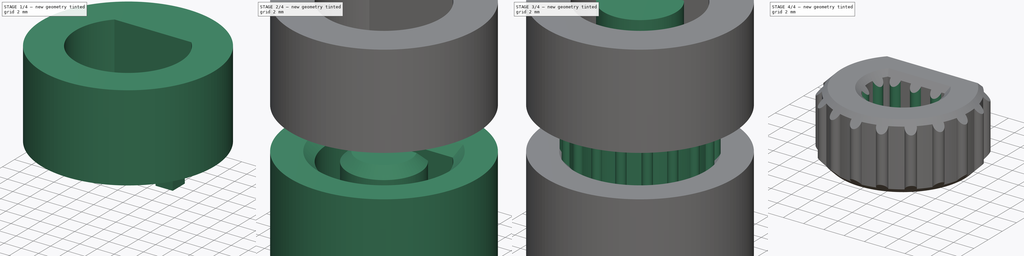
[diagram: build sequence overview — one tinted view per stage of 4, left to right]
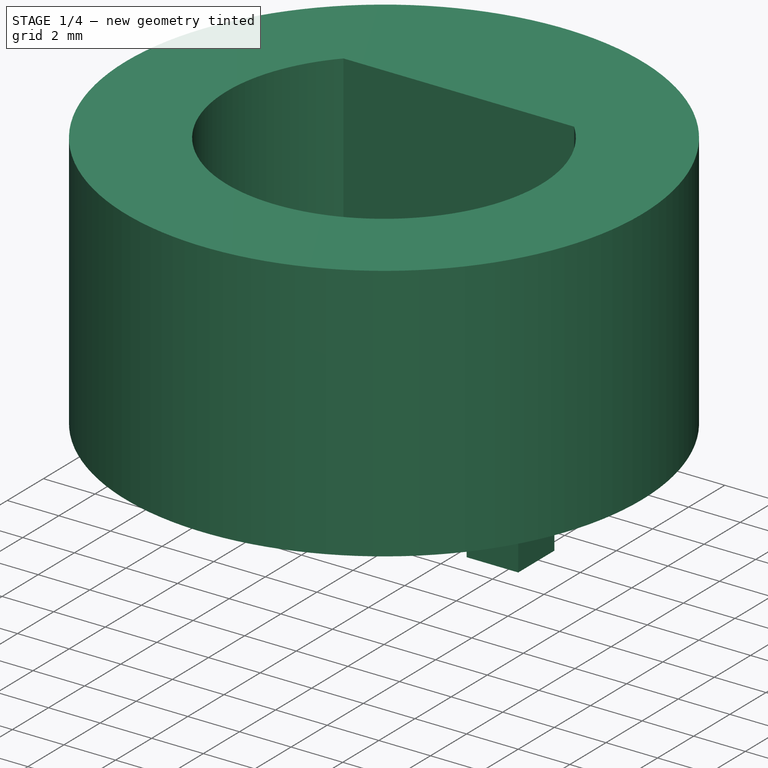
[diagram: stage 1 of 4 — iso view after this stage's code; geometry added in this stage tinted green]
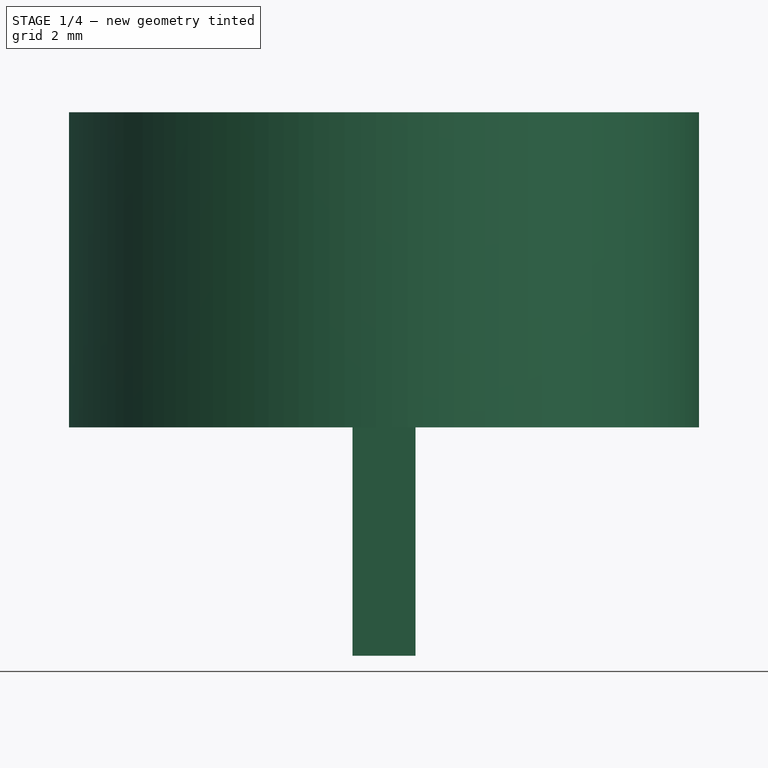
[diagram: stage 1 of 4 — front view after this stage's code; geometry added in this stage tinted green]
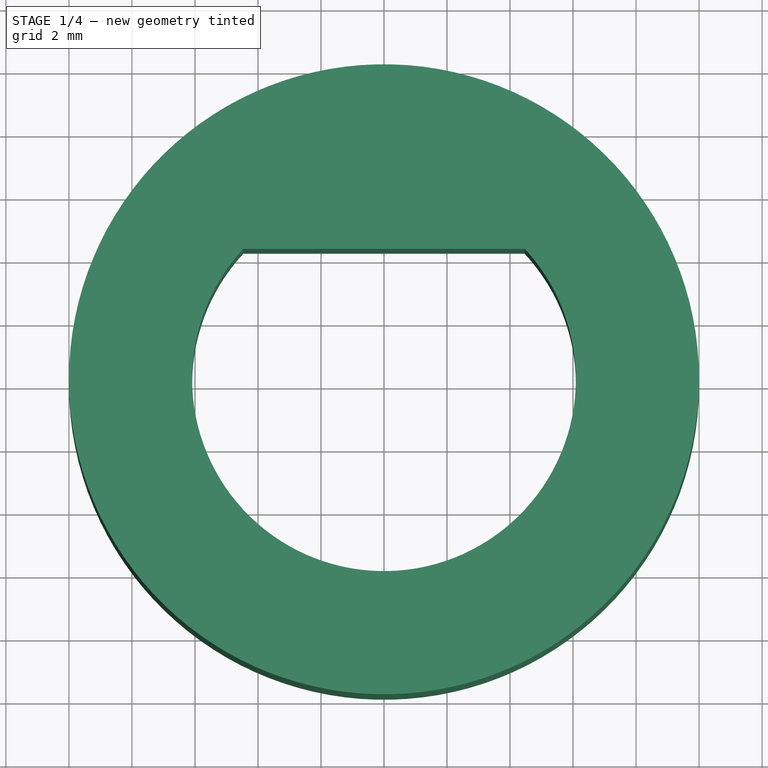
[diagram: stage 1 of 4 — top view after this stage's code; geometry added in this stage tinted green]
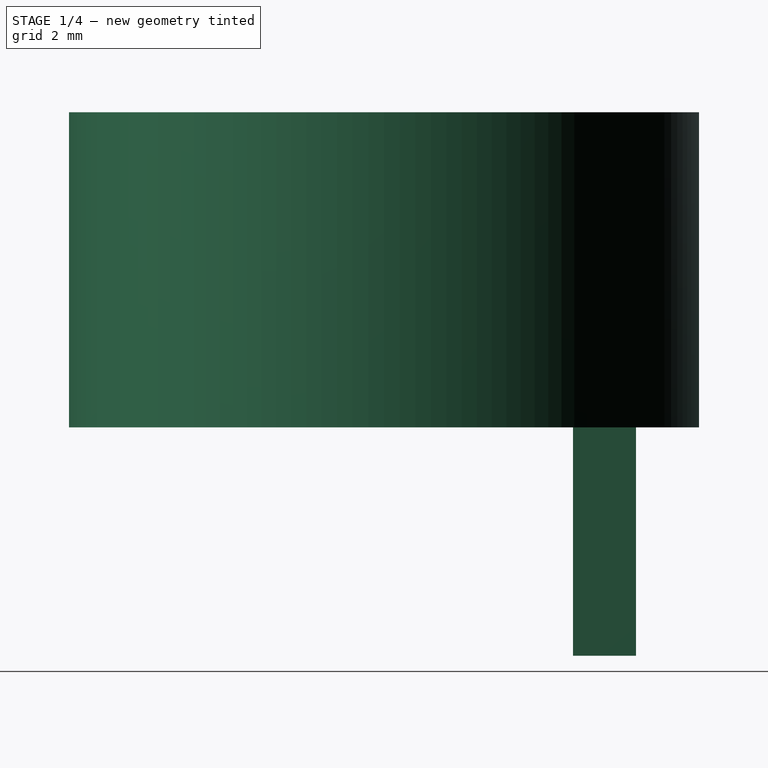
[diagram: stage 1 of 4 — right view after this stage's code; geometry added in this stage tinted green]
FCSTD DOCUMENT  (FreeCAD 0.21R33668 +26 (Git))
Label: PLASTIC-TEK2-KNOB-INTERFACE
License: All rights reserved
LicenseURL: https://en.wikipedia.org/wiki/All_rights_reserved
objects: Sketcher::SketchObject×7, PartDesign::Pad×7, PartDesign::Plane×3, PartDesign::Body×3, PartDesign::Chamfer×2, PartDesign::Mirrored×2, PartDesign::Boolean×2
note: 35 computed .brp shape members not serialized (recipe doc carries the construction recipe); baked Part::Feature solids carry a one-line shape summary decoded from their .brp

FEATURE [PartDesign::Plane] DatumPlane002
  AttachmentOffset = pos=(0,0,2.25) rot=(0,0,1;0rad)
  Length = 60
  MapMode = 5
  Placement = pos=(0,0,2.25) rot=(0,0,1;0rad)
  ResizeMode = 0
  Support = -> [XY_Plane002]
  Width = 60
FEATURE [Sketcher::SketchObject] Sketch008
  FullyConstrained = true
  MapMode = 5
  Placement = pos=(0,0,2.25) rot=(0,0,1;0rad)
  Support = -> [DatumPlane002]
  sketch-geometry (3):
    g0: ArcOfCircle CenterX=0 CenterY=0 CenterZ=0 NormalX=0 NormalY=0 NormalZ=1 AngleXU=0 Radius=6.09 StartAngle=2.3941 EndAngle=7.03068
    g1: LineSegment StartX=-4.46637 StartY=4.14 StartZ=0 EndX=4.46637 EndY=4.14 EndZ=0
    g2: Circle CenterX=0 CenterY=0 CenterZ=0 NormalX=0 NormalY=0 NormalZ=1 AngleXU=0 Radius=10
  constraints (8):
    c: Coincident(g0,g-1)
    c: Horizontal(g1)
    c: Diameter(g0) = 12.18
    c: DistanceY(g-1,g1) = 4.14
    c: Coincident(g0,g1)
    c: Coincident(g0,g1)
    c: Coincident(g0,g2)
    c: Diameter(g2) = 20
FEATURE [PartDesign::Pad] Pad006
  Direction = (0,0,1)
  Length = 10
  Length2 = 10
  Placement = pos=(0,0,2.25) rot=(0,0,1;0rad)
  Profile = -> Sketch008
  ReferenceAxis = -> Sketch008 [N_Axis]
  Type = 0
FEATURE [PartDesign::Chamfer] Chamfer001
  Angle = 45
  Base = -> Pad006 [Edge6,Edge8]
  BaseFeature = -> Pad006
  ChamferType = 0
  FlipDirection = false
  Placement = pos=(0,0,2.25) rot=(0,0,1;0rad)
  Size = 1
  Size2 = 1
  SupportTransform = false
  UseAllEdges = false
FEATURE [Sketcher::SketchObject] Sketch009
  FullyConstrained = true
  MapMode = 5
  Placement = pos=(0,0,0) rot=(0.57735,0.57735,0.57735;2.0944rad)
  Support = -> [YZ_Plane002]
  sketch-geometry (5):
    g0: LineSegment StartX=6 StartY=-5 StartZ=0 EndX=6 EndY=5 EndZ=0
    g1: LineSegment StartX=6 StartY=5 StartZ=0 EndX=8 EndY=5 EndZ=0
    g2: LineSegment StartX=8 StartY=5 StartZ=0 EndX=8 EndY=-5 EndZ=0
    g3: LineSegment StartX=8 StartY=-5 StartZ=0 EndX=6 EndY=-5 EndZ=0
    g4: GeomPoint X=7 Y=0 Z=0
  constraints (13):
    c: Coincident(g0,g1)
    c: Coincident(g1,g2)
    c: Coincident(g2,g3)
    c: Coincident(g3,g0)
    c: Horizontal(g1)
    c: Horizontal(g3)
    c: Vertical(g0)
    c: Vertical(g2)
    c: Symmetric(g1,g0,g4)
    c: PointOnObject(g4,g-1)
    c: DistanceY(g2,g2) = 10
    c: DistanceX(g1,g1) = 2
    c: DistanceX(g-1,g0) = 6
FEATURE [PartDesign::Pad] Pad007
  BaseFeature = -> Chamfer001
  Direction = (1,-2e-16,3e-16)
  Length = 2
  Length2 = 10
  Midplane = true
  Placement = pos=(0,0,2.25) rot=(0,0,1;0rad)
  Profile = -> Sketch009
  ReferenceAxis = -> Sketch009 [N_Axis]
  Type = 0
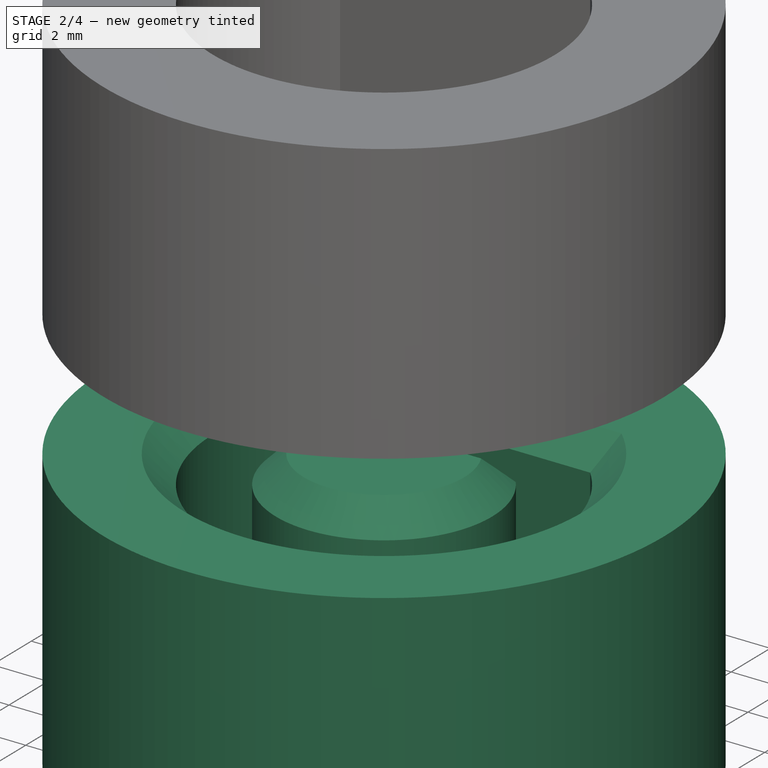
[diagram: stage 2 of 4 — iso view after this stage's code; geometry added in this stage tinted green]
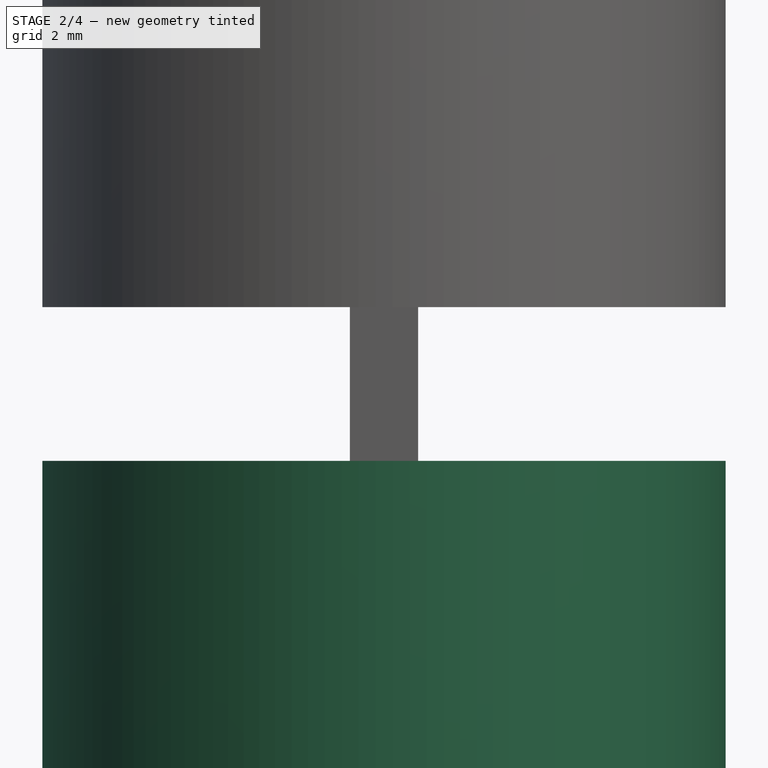
[diagram: stage 2 of 4 — front view after this stage's code; geometry added in this stage tinted green]
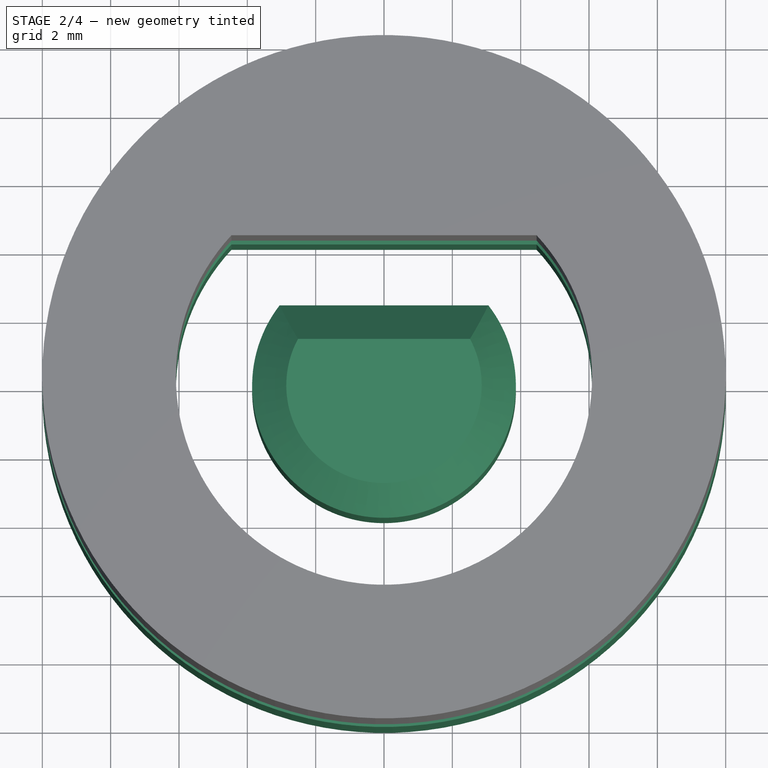
[diagram: stage 2 of 4 — top view after this stage's code; geometry added in this stage tinted green]
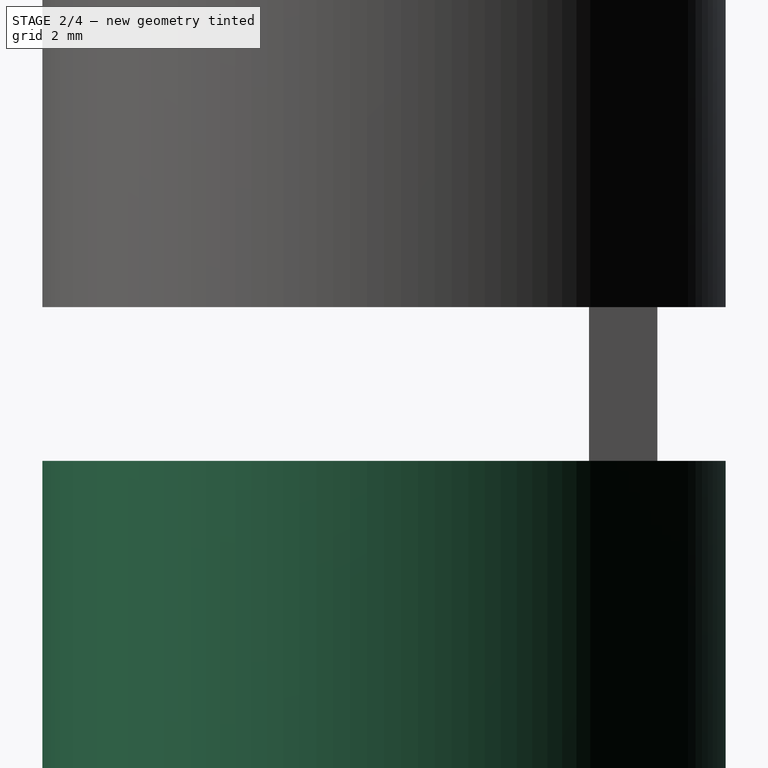
[diagram: stage 2 of 4 — right view after this stage's code; geometry added in this stage tinted green]
FEATURE [PartDesign::Plane] DatumPlane001
  AttachmentOffset = pos=(0,0,-4) rot=(0,0,1;0rad)
  Length = 60
  MapMode = 5
  Placement = pos=(0,0,-4) rot=(0,0,1;0rad)
  ResizeMode = 0
  Support = -> [XY_Plane]
  Width = 60
FEATURE [PartDesign::Plane] DatumPlane
  AttachmentOffset = pos=(0,0,-2.25) rot=(0,0,1;0rad)
  Length = 60
  MapMode = 5
  Placement = pos=(0,0,-2.25) rot=(0,0,1;0rad)
  ResizeMode = 0
  Support = -> [XY_Plane001]
  Width = 60
FEATURE [Sketcher::SketchObject] Sketch006
  FullyConstrained = true
  MapMode = 5
  Placement = pos=(0,0,-2.25) rot=(0,0,1;0rad)
  Support = -> [DatumPlane]
  sketch-geometry (2):
    g0: ArcOfCircle CenterX=0 CenterY=0 CenterZ=0 NormalX=0 NormalY=0 NormalZ=1 AngleXU=0 Radius=3.86 StartAngle=2.48377 EndAngle=6.94101
    g1: LineSegment StartX=-3.0545 StartY=2.36 StartZ=0 EndX=3.0545 EndY=2.36 EndZ=0
  constraints (6):
    c: Coincident(g0,g-1)
    c: Horizontal(g1)
    c: Diameter(g0) = 7.72
    c: DistanceY(g-1,g1) = 2.36
    c: Coincident(g0,g1)
    c: Coincident(g0,g1)
FEATURE [PartDesign::Pad] Pad004
  Direction = (0,0,1)
  Length = 10
  Length2 = 10
  Placement = pos=(0,0,-2.25) rot=(0,0,1;0rad)
  Profile = -> Sketch006
  ReferenceAxis = -> Sketch006 [N_Axis]
  Reversed = true
  Type = 0
FEATURE [PartDesign::Chamfer] Chamfer
  Angle = 45
  Base = -> Pad004 [Edge3,Edge5]
  BaseFeature = -> Pad004
  ChamferType = 0
  FlipDirection = false
  Placement = pos=(0,0,-2.25) rot=(0,0,1;0rad)
  Size = 1
  Size2 = 1
  SupportTransform = false
  UseAllEdges = false
FEATURE [PartDesign::Mirrored] Mirrored001
  BaseFeature = -> Pad007
  MirrorPlane = -> XY_Plane002
  Originals = -> [Pad006,Chamfer001]
  Placement = pos=(0,0,2.25) rot=(0,0,1;0rad)
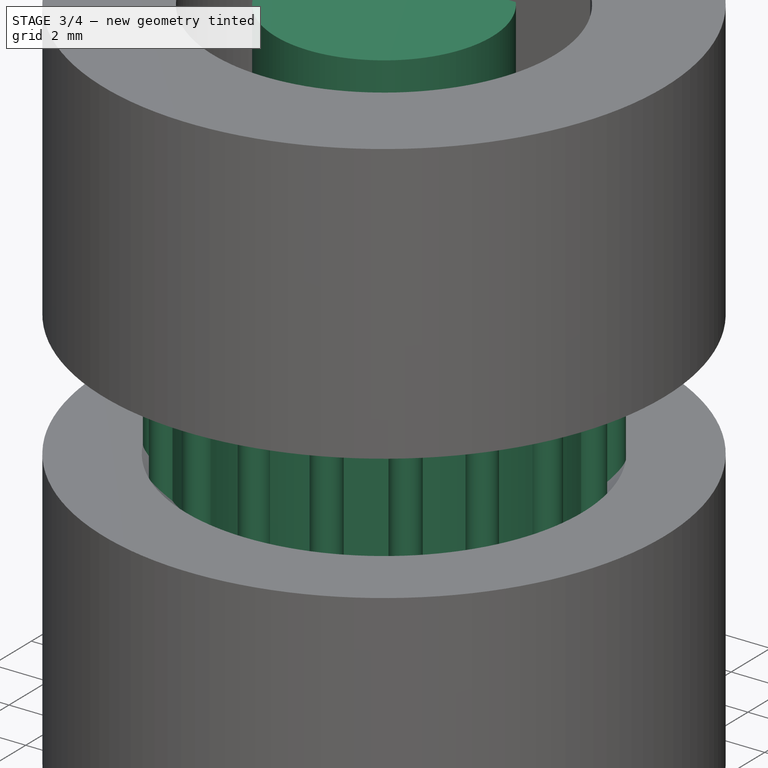
[diagram: stage 3 of 4 — iso view after this stage's code; geometry added in this stage tinted green]
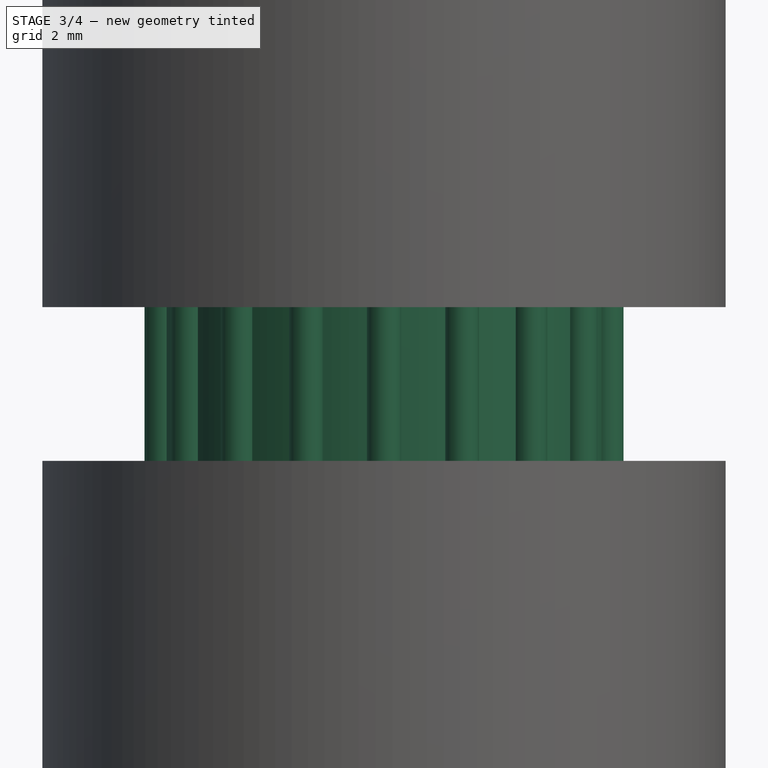
[diagram: stage 3 of 4 — front view after this stage's code; geometry added in this stage tinted green]
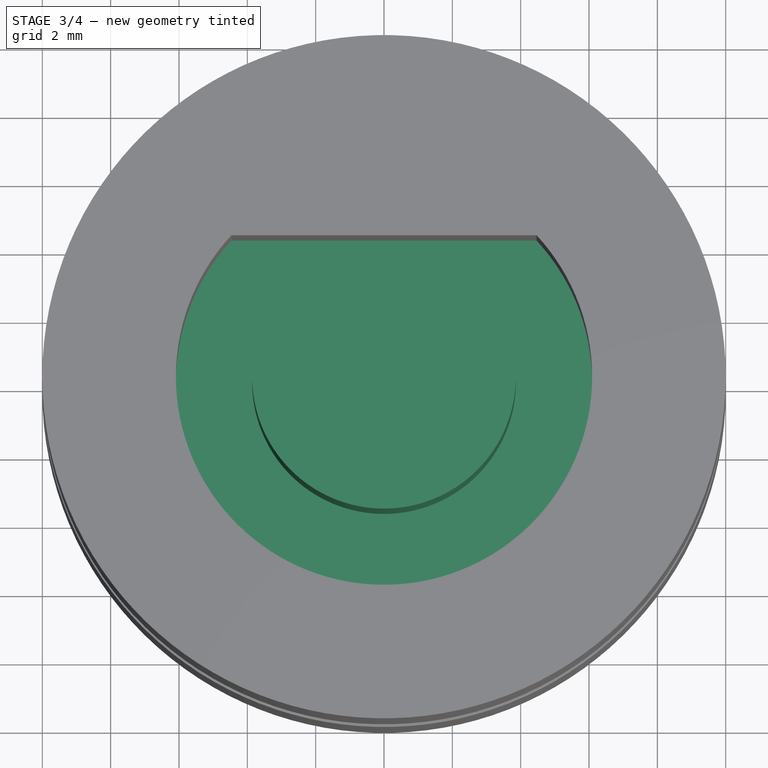
[diagram: stage 3 of 4 — top view after this stage's code; geometry added in this stage tinted green]
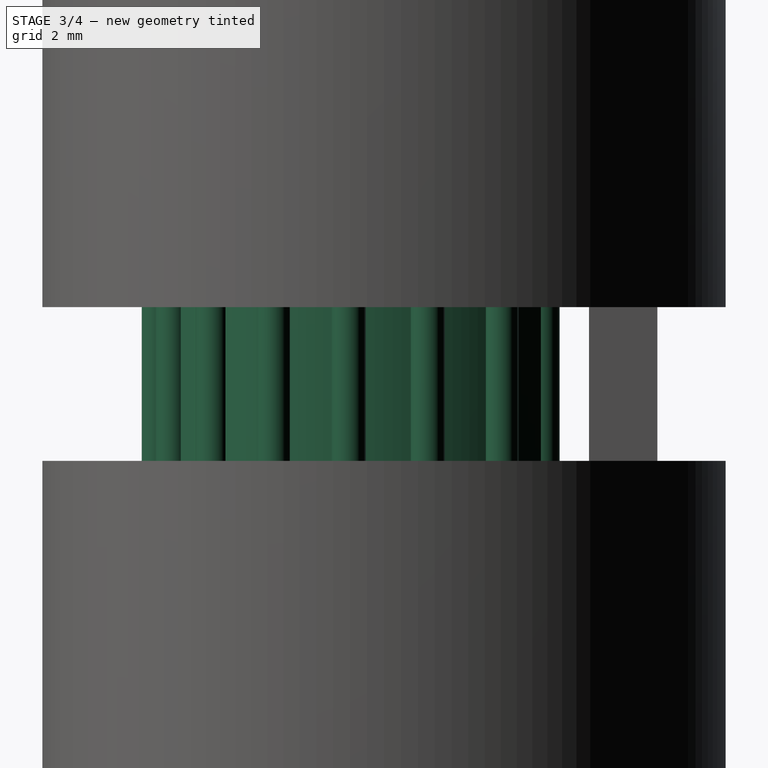
[diagram: stage 3 of 4 — right view after this stage's code; geometry added in this stage tinted green]
FEATURE [Sketcher::SketchObject] Sketch
  FullyConstrained = true
  MapMode = 5
  Support = -> [XY_Plane]
  sketch-geometry (5):
    g0: LineSegment StartX=-2.79821 StartY=1.86 StartZ=0 EndX=2.79821 EndY=1.86 EndZ=0
    g1: ArcOfCircle CenterX=0 CenterY=0 CenterZ=0 NormalX=0 NormalY=0 NormalZ=1 AngleXU=0 Radius=3.36 StartAngle=2.55495 EndAngle=6.86983
    g2: LineSegment StartX=-4.6587 StartY=4.59 StartZ=0 EndX=4.6587 EndY=4.59 EndZ=0
    g3: GeomPoint X=-1e-16 Y=4.59 Z=0
    g4: ArcOfCircle CenterX=0 CenterY=0 CenterZ=0 NormalX=0 NormalY=0 NormalZ=1 AngleXU=0 Radius=6.54 StartAngle=2.36362 EndAngle=7.06116
  constraints (13):
    c: Diameter(g1) = 6.72
    c: Coincident(g0,g1)
    c: Coincident(g0,g1)
    c: Horizontal(g0)
    c: Horizontal(g2)
    c: Symmetric(g2,g2,g3)
    c: Diameter(g4) = 13.08
    c: Coincident(g4,g2)
    c: Coincident(g4,g2)
    c: Coincident(g4,g1)
    c: DistanceY(g1,g2) = 4.59
    c: Coincident(g1,g-1)
    c: DistanceY(g1,g0) = 1.86
FEATURE [PartDesign::Pad] Pad
  Direction = (0,0,1)
  Length = 6.5
  Length2 = 10
  Midplane = true
  Profile = -> Sketch
  ReferenceAxis = -> Sketch [N_Axis]
  Type = 0
FEATURE [Sketcher::SketchObject] Sketch002
  FullyConstrained = true
  MapMode = 5
  Support = -> [XY_Plane]
  sketch-geometry (38):
    g0: ArcOfCircle CenterX=0 CenterY=0 CenterZ=0 NormalX=0 NormalY=0 NormalZ=1 AngleXU=0 Radius=6.59 StartAngle=2.36044 EndAngle=7.06434
    g1: Circle CenterX=-5.6209 CenterY=3.44 CenterZ=0 NormalX=0 NormalY=0 NormalZ=1 AngleXU=0 Radius=0.5
    g2: LineSegment StartX=-4.67958 StartY=4.64 StartZ=0 EndX=4.67958 EndY=4.64 EndZ=0
    g3: Circle CenterX=-6.464 CenterY=1.28252 CenterZ=0 NormalX=0 NormalY=0 NormalZ=1 AngleXU=0 Radius=0.5
    g4: Circle CenterX=-6.50847 CenterY=-1.03342 CenterZ=0 NormalX=0 NormalY=0 NormalZ=1 AngleXU=0 Radius=0.5
    g5: Circle CenterX=-4.27889 CenterY=-5.0119 CenterZ=0 NormalX=0 NormalY=0 NormalZ=1 AngleXU=0 Radius=0.5
    g6: Circle CenterX=-2.28031 CenterY=-6.1829 CenterZ=0 NormalX=0 NormalY=0 NormalZ=1 AngleXU=0 Radius=0.5
    g7: Circle CenterX=4e-16 CenterY=-6.59 CenterZ=0 NormalX=0 NormalY=0 NormalZ=1 AngleXU=0 Radius=0.5
    g8: Circle CenterX=5.6209 CenterY=3.44 CenterZ=0 NormalX=0 NormalY=0 NormalZ=1 AngleXU=0 Radius=0.5
    g9: Circle CenterX=-5.74881 CenterY=-3.22168 CenterZ=0 NormalX=0 NormalY=0 NormalZ=1 AngleXU=0 Radius=0.5
    g10: Circle CenterX=6.464 CenterY=1.28252 CenterZ=0 NormalX=0 NormalY=0 NormalZ=1 AngleXU=0 Radius=0.5
    g11: Circle CenterX=4.27889 CenterY=-5.0119 CenterZ=0 NormalX=0 NormalY=0 NormalZ=1 AngleXU=0 Radius=0.5
    g12: Circle CenterX=5.74881 CenterY=-3.22168 CenterZ=0 NormalX=0 NormalY=0 NormalZ=1 AngleXU=0 Radius=0.5
    g13: Circle CenterX=2.28031 CenterY=-6.1829 CenterZ=0 NormalX=0 NormalY=0 NormalZ=1 AngleXU=0 Radius=0.5
    g14: Circle CenterX=6.50847 CenterY=-1.03342 CenterZ=0 NormalX=0 NormalY=0 NormalZ=1 AngleXU=0 Radius=0.5
    g15: LineSegment StartX=-5.6209 StartY=3.44 StartZ=0 EndX=-6.464 EndY=1.28252 EndZ=0
    g16: LineSegment StartX=-6.464 StartY=1.28252 StartZ=0 EndX=-6.50847 EndY=-1.03342 EndZ=0
    g17: LineSegment StartX=-6.50847 StartY=-1.03342 StartZ=0 EndX=-5.74881 EndY=-3.22168 EndZ=0
    g18: LineSegment StartX=-5.74881 StartY=-3.22168 StartZ=0 EndX=-4.27889 EndY=-5.0119 EndZ=0
    g19: LineSegment StartX=-4.27889 StartY=-5.0119 StartZ=0 EndX=-2.28031 EndY=-6.1829 EndZ=0
    g20: LineSegment StartX=-2.28031 StartY=-6.1829 StartZ=0 EndX=4e-16 EndY=-6.59 EndZ=0
    g21: LineSegment StartX=4e-16 StartY=-6.59 StartZ=0 EndX=2.28031 EndY=-6.1829 EndZ=0
    g22: LineSegment StartX=2.28031 StartY=-6.1829 StartZ=0 EndX=4.27889 EndY=-5.0119 EndZ=0
    g23: LineSegment StartX=4.27889 StartY=-5.0119 StartZ=0 EndX=5.74881 EndY=-3.22168 EndZ=0
    g24: LineSegment StartX=5.74881 StartY=-3.22168 StartZ=0 EndX=6.50847 EndY=-1.03342 EndZ=0
    g25: LineSegment StartX=6.50847 StartY=-1.03342 StartZ=0 EndX=6.464 EndY=1.28252 EndZ=0
    g26: LineSegment StartX=6.464 StartY=1.28252 StartZ=0 EndX=5.6209 EndY=3.44 EndZ=0
    g27: Circle CenterX=-3.45 CenterY=4.64 CenterZ=0 NormalX=0 NormalY=0 NormalZ=1 AngleXU=0 Radius=0.5
    g28: Circle CenterX=-1.15 CenterY=4.64 CenterZ=0 NormalX=0 NormalY=0 NormalZ=1 AngleXU=0 Radius=0.5
    g29: LineSegment StartX=-3.45 StartY=4.64 StartZ=0 EndX=-1.15 EndY=4.64 EndZ=0
    g30: Circle CenterX=1.15 CenterY=4.64 CenterZ=0 NormalX=0 NormalY=0 NormalZ=1 AngleXU=0 Radius=0.5
    g31: LineSegment StartX=-1.15 StartY=4.64 StartZ=0 EndX=1.15 EndY=4.64 EndZ=0
    g32: Circle CenterX=3.45 CenterY=4.64 CenterZ=0 NormalX=0 NormalY=0 NormalZ=1 AngleXU=0 Radius=0.5
    g33: LineSegment StartX=1.15 StartY=4.64 StartZ=0 EndX=3.45 EndY=4.64 EndZ=0
    g34: GeomPoint X=0 Y=4.64 Z=0
    g35: LineSegment StartX=-4.88349 StartY=5.14 StartZ=0 EndX=4.88349 EndY=5.14 EndZ=0
    g36: ArcOfCircle CenterX=0 CenterY=0 CenterZ=0 NormalX=0 NormalY=0 NormalZ=1 AngleXU=0 Radius=7.09 StartAngle=2.33061 EndAngle=7.09417
    g37: GeomPoint X=0 Y=-7.09 Z=0
  constraints (99):
    c: Coincident(g0,g-1)
    c: Diameter(g0) = 13.18
    c: PointOnObject(g1,g0)
    c: Diameter(g1) = 1
    c: Horizontal(g2)
    c: DistanceY(g0,g2) = 4.64
    c: Coincident(g0,g2)
    c: Coincident(g0,g2)
    c: DistanceY(g1,g0) = 1.2
    c: PointOnObject(g4,g0)
    c: PointOnObject(g5,g0)
    c: PointOnObject(g6,g0)
    c: PointOnObject(g7,g0)
    c: PointOnObject(g3,g0)
    c: PointOnObject(g9,g0)
    c: Equal(g1,g3)
    c: Equal(g3,g4)
    c: Equal(g4,g9)
    c: Equal(g9,g5)
    c: Equal(g5,g6)
    c: Equal(g6,g7)
    c: Equal(g7,g11)
    c: Equal(g11,g12)
    c: Equal(g12,g13)
    c: Equal(g13,g10)
    c: Equal(g10,g8)
    c: PointOnObject(g11,g0)
    c: PointOnObject(g12,g0)
    c: PointOnObject(g13,g0)
    c: PointOnObject(g14,g0)
    c: Coincident(g15,g1)
    c: Coincident(g16,g15)
    c: Coincident(g16,g4)
    c: Coincident(g17,g16)
    c: Coincident(g18,g17)
    c: Coincident(g18,g5)
    c: Coincident(g19,g18)
    c: Coincident(g20,g19)
    c: Coincident(g20,g7)
    c: Coincident(g21,g20)
    c: Coincident(g22,g21)
    c: Coincident(g22,g11)
    c: Coincident(g23,g22)
    c: Coincident(g24,g23)
    c: Coincident(g24,g14)
    c: Coincident(g25,g24)
    c: Coincident(g25,g10)
    c: Coincident(g26,g25)
    c: Coincident(g26,g8)
    c: Coincident(g15,g3)
    c: Coincident(g17,g9)
    c: Coincident(g19,g6)
    c: Coincident(g21,g13)
    c: Coincident(g23,g12)
    c: PointOnObject(g25,g0)
    c: PointOnObject(g26,g0)
    c: Equal(g15,g16)
    c: Equal(g16,g17)
    c: Equal(g17,g18)
    c: Equal(g18,g19)
    c: Equal(g19,g20)
    c: Equal(g20,g21)
    c: Equal(g21,g22)
    c: Equal(g22,g23)
    c: Equal(g23,g24)
    c: Equal(g24,g25)
    c: Equal(g25,g26)
    c: Horizontal(g8,g1)
    c: Equal(g14,g1)
    c: PointOnObject(g27,g2)
    c: Equal(g27,g1)
    c: Coincident(g27,g29)
    c: Coincident(g28,g29)
    c: Distance(g29) = 2.3
    c: Coincident(g28,g31)
    c: Coincident(g30,g31)
    c: Equal(g29,g31)
    c: Parallel(g31,g29)
    c: Coincident(g30,g33)
    c: Coincident(g32,g33)
    c: Equal(g29,g33)
    c: Parallel(g33,g29)
    c: PointOnObject(g34,g-2)
    c: Symmetric(g28,g30,g34)
    c: Equal(g27,g28)
    c: Equal(g28,g30)
    c: Equal(g30,g32)
    c: Horizontal(g33)
    c: Horizontal(g35)
    c: Coincident(g36,g0)
    c: Tangent(g36,g7)
    c: Coincident(g35,g36)
    c: Coincident(g35,g36)
    c: Tangent(g35,g30)
    c: DistanceY(g0,g35) = 5.14
    c: Diameter(g36) = 14.18
    c: PointOnObject(g37,g36)
    c: PointOnObject(g37,g-2)
    c: DistanceY(g37,g35) = 12.23
FEATURE [PartDesign::Pad] Pad002
  BaseFeature = -> Pad
  Direction = (0,0,1)
  Length = 6.5
  Length2 = 10
  Midplane = true
  Profile = -> Sketch002
  ReferenceAxis = -> Sketch002 [N_Axis]
  Refine = true
  Type = 0
FEATURE [Sketcher::SketchObject] Sketch007
  FullyConstrained = true
  MapMode = 5
  Placement = pos=(0,0,0) rot=(0.57735,0.57735,0.57735;2.0944rad)
  Support = -> [YZ_Plane001]
  sketch-geometry (5):
    g0: LineSegment StartX=-1 StartY=-5 StartZ=0 EndX=-1 EndY=5 EndZ=0
    g1: LineSegment StartX=-1 StartY=5 StartZ=0 EndX=1 EndY=5 EndZ=0
    g2: LineSegment StartX=1 StartY=5 StartZ=0 EndX=1 EndY=-5 EndZ=0
    g3: LineSegment StartX=1 StartY=-5 StartZ=0 EndX=-1 EndY=-5 EndZ=0
    g4: GeomPoint X=0 Y=0 Z=0
  constraints (12):
    c: Coincident(g0,g1)
    c: Coincident(g1,g2)
    c: Coincident(g2,g3)
    c: Coincident(g3,g0)
    c: Horizontal(g1)
    c: Horizontal(g3)
    c: Vertical(g0)
    c: Vertical(g2)
    c: Symmetric(g1,g0,g4)
    c: Coincident(g4,g-1)
    c: DistanceY(g2,g2) = 10
    c: DistanceX(g1,g1) = 2
FEATURE [PartDesign::Pad] Pad005
  BaseFeature = -> Chamfer
  Direction = (1,-2e-16,3e-16)
  Length = 2
  Length2 = 10
  Midplane = true
  Placement = pos=(0,0,-2.25) rot=(0,0,1;0rad)
  Profile = -> Sketch007
  ReferenceAxis = -> Sketch007 [N_Axis]
  Type = 0
FEATURE [PartDesign::Mirrored] Mirrored
  BaseFeature = -> Pad005
  MirrorPlane = -> XY_Plane001
  Originals = -> [Pad004,Chamfer]
  Placement = pos=(0,0,-2.25) rot=(0,0,1;0rad)
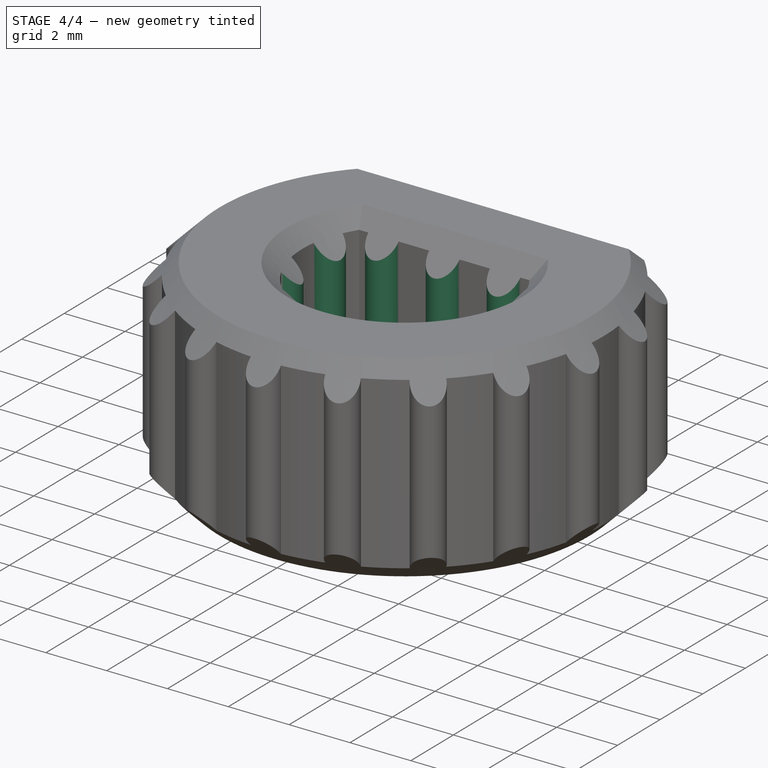
[diagram: stage 4 of 4 — iso view after this stage's code; geometry added in this stage tinted green]
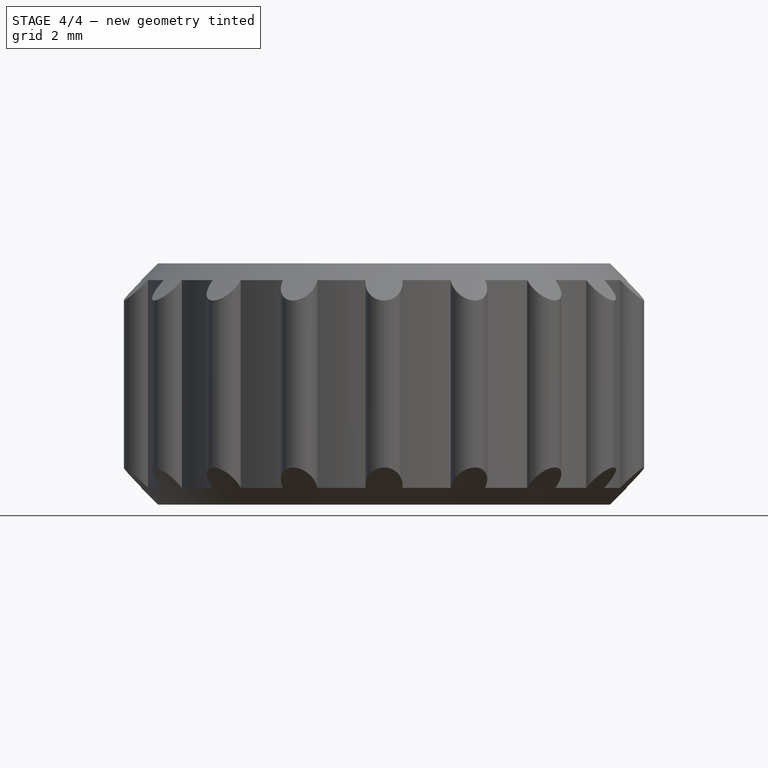
[diagram: stage 4 of 4 — front view after this stage's code; geometry added in this stage tinted green]
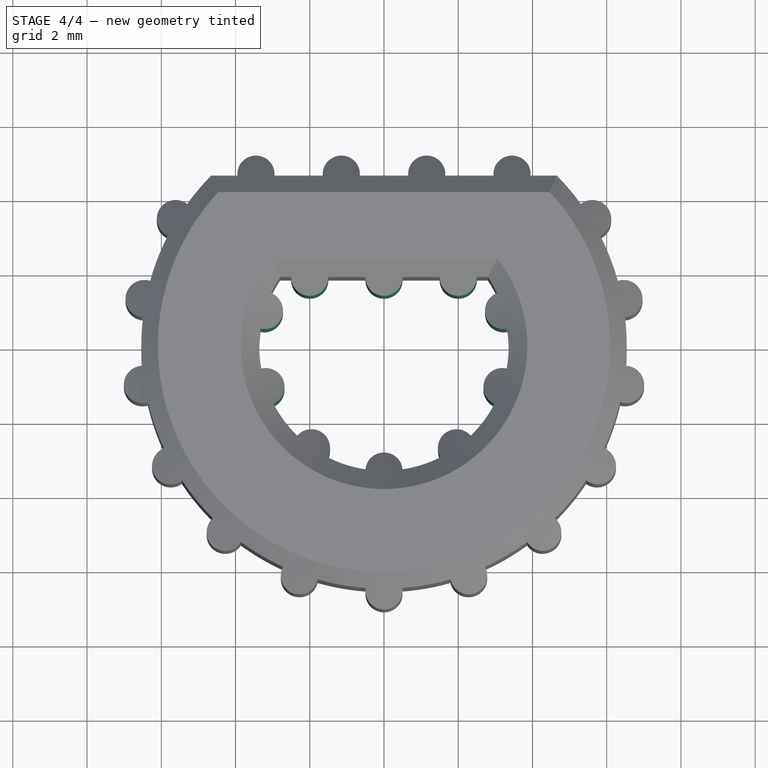
[diagram: stage 4 of 4 — top view after this stage's code; geometry added in this stage tinted green]
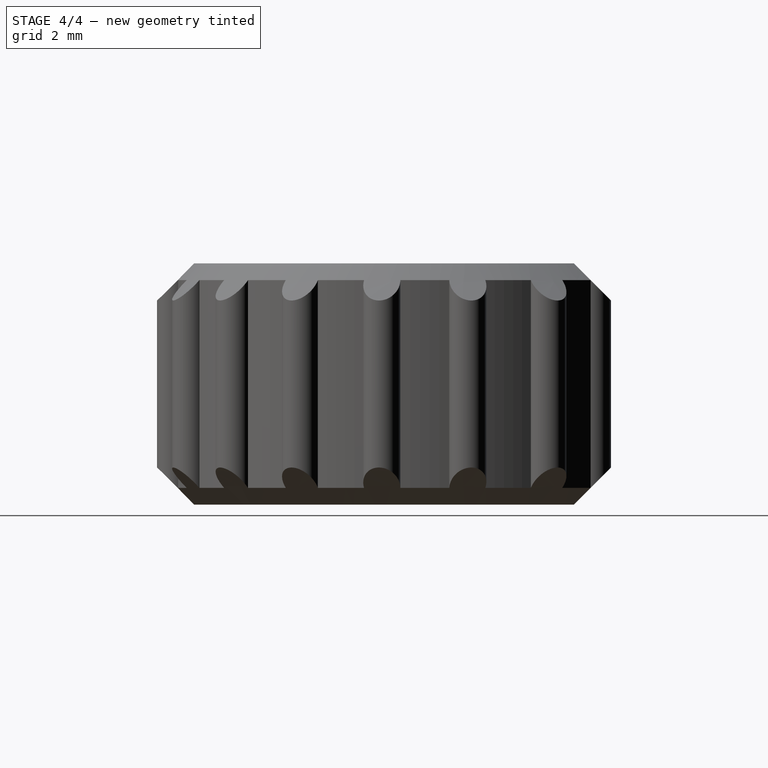
[diagram: stage 4 of 4 — right view after this stage's code; geometry added in this stage tinted green]
FEATURE [Sketcher::SketchObject] Sketch003
  FullyConstrained = true
  MapMode = 5
  Support = -> [XY_Plane]
  sketch-geometry (22):
    g0: ArcOfCircle CenterX=0 CenterY=0 CenterZ=0 NormalX=0 NormalY=0 NormalZ=1 AngleXU=0 Radius=3.36 StartAngle=2.55495 EndAngle=6.86983
    g1: LineSegment StartX=-2.79821 StartY=1.86 StartZ=0 EndX=2.79821 EndY=1.86 EndZ=0
    g2: Circle CenterX=-2 CenterY=1.86 CenterZ=0 NormalX=0 NormalY=0 NormalZ=1 AngleXU=0 Radius=0.5
    g3: Circle CenterX=0 CenterY=1.86 CenterZ=0 NormalX=0 NormalY=0 NormalZ=1 AngleXU=0 Radius=0.5
    g4: LineSegment StartX=-2 StartY=1.86 StartZ=0 EndX=0 EndY=1.86 EndZ=0
    g5: Circle CenterX=2 CenterY=1.86 CenterZ=0 NormalX=0 NormalY=0 NormalZ=1 AngleXU=0 Radius=0.5
    g6: LineSegment StartX=0 StartY=1.86 StartZ=0 EndX=2 EndY=1.86 EndZ=0
    g7: Circle CenterX=-3.21994 CenterY=0.96 CenterZ=0 NormalX=0 NormalY=0 NormalZ=1 AngleXU=0 Radius=0.5
    g8: Circle CenterX=-3.17823 CenterY=-1.09015 CenterZ=0 NormalX=0 NormalY=0 NormalZ=1 AngleXU=0 Radius=0.5
    g9: Circle CenterX=-1.95278 CenterY=-2.73427 CenterZ=0 NormalX=0 NormalY=0 NormalZ=1 AngleXU=0 Radius=0.5
    g10: Circle CenterX=-2e-16 CenterY=-3.36 CenterZ=0 NormalX=0 NormalY=0 NormalZ=1 AngleXU=0 Radius=0.5
    g11: Circle CenterX=1.95278 CenterY=-2.73427 CenterZ=0 NormalX=0 NormalY=0 NormalZ=1 AngleXU=0 Radius=0.5
    g12: Circle CenterX=3.17823 CenterY=-1.09015 CenterZ=0 NormalX=0 NormalY=0 NormalZ=1 AngleXU=0 Radius=0.5
    g13: Circle CenterX=3.21994 CenterY=0.96 CenterZ=0 NormalX=0 NormalY=0 NormalZ=1 AngleXU=0 Radius=0.5
    g14: LineSegment StartX=-3.21994 StartY=0.96 StartZ=0 EndX=-3.17823 EndY=-1.09015 EndZ=0
    g15: LineSegment StartX=-3.17823 StartY=-1.09015 StartZ=0 EndX=-1.95278 EndY=-2.73427 EndZ=0
    g16: LineSegment StartX=-1.95278 StartY=-2.73427 StartZ=0 EndX=-2e-16 EndY=-3.36 EndZ=0
    g17: LineSegment StartX=-2e-16 StartY=-3.36 StartZ=0 EndX=1.95278 EndY=-2.73427 EndZ=0
    g18: LineSegment StartX=1.95278 StartY=-2.73427 StartZ=0 EndX=3.17823 EndY=-1.09015 EndZ=0
    g19: LineSegment StartX=3.17823 StartY=-1.09015 StartZ=0 EndX=3.21994 EndY=0.96 EndZ=0
    g20: LineSegment StartX=-2.51595 StartY=1.36 StartZ=0 EndX=2.51595 EndY=1.36 EndZ=0
    g21: ArcOfCircle CenterX=0 CenterY=0 CenterZ=0 NormalX=0 NormalY=0 NormalZ=1 AngleXU=0 Radius=2.86 StartAngle=2.64603 EndAngle=6.77875
  constraints (60):
    c: Coincident(g0,g-1)
    c: Diameter(g0) = 6.72
    c: Horizontal(g1)
    c: DistanceY(g0,g1) = 1.86
    c: Coincident(g0,g1)
    c: Coincident(g0,g1)
    c: PointOnObject(g2,g1)
    c: Diameter(g2) = 1
    c: Equal(g2,g3) = 1
    c: Coincident(g2,g4)
    c: Coincident(g3,g4)
    c: Distance(g4) = 2
    c: Angle(g4) = 0
    c: Equal(g2,g5) = 1
    c: Coincident(g3,g6)
    c: Coincident(g5,g6)
    c: Equal(g4,g6)
    c: Parallel(g6,g4)
    c: PointOnObject(g3,g-2)
    c: PointOnObject(g7,g0)
    c: PointOnObject(g8,g0)
    c: Equal(g2,g7)
    c: Equal(g7,g8)
    c: Equal(g8,g9)
    c: Equal(g9,g10)
    c: Equal(g10,g11)
    c: Equal(g11,g12)
    c: Equal(g12,g13)
    c: PointOnObject(g9,g0)
    c: PointOnObject(g10,g0)
    c: PointOnObject(g11,g0)
    c: PointOnObject(g12,g0)
    c: PointOnObject(g13,g0)
    c: Coincident(g14,g7)
    c: Coincident(g14,g8)
    c: Coincident(g15,g8)
    c: Coincident(g15,g9)
    c: Coincident(g16,g9)
    c: Coincident(g16,g10)
    c: Coincident(g17,g10)
    c: Coincident(g17,g11)
    c: Coincident(g18,g11)
    c: Coincident(g18,g12)
    c: Coincident(g19,g12)
    c: Coincident(g19,g13)
    c: Equal(g16,g15)
    c: Equal(g15,g14)
    c: Equal(g14,g17)
    c: Equal(g17,g18)
    c: Equal(g18,g19)
    c: DistanceY(g7,g0) = 0.9
    c: Horizontal(g13,g7)
    c: Horizontal(g20)
    c: Tangent(g20,g3)
    c: Coincident(g21,g20)
    c: Diameter(g21) = 5.72
    c: DistanceY(g0,g20) = 1.36
    c: Coincident(g21,g20)
    c: Tangent(g21,g10)
    c: Coincident(g0,g21)
FEATURE [PartDesign::Pad] Pad003
  BaseFeature = -> Pad002
  Direction = (0,0,1)
  Length = 6.5
  Length2 = 10
  Midplane = true
  Profile = -> Sketch003
  ReferenceAxis = -> Sketch003 [N_Axis]
  Refine = true
  Type = 0
FEATURE [PartDesign::Body] Body001
  Group = -> [DatumPlane,Sketch006,Pad004,Chamfer,Sketch007,Pad005,Mirrored]
  Origin = -> Origin001
  Tip = -> Mirrored
FEATURE [PartDesign::Boolean] Boolean
  BaseFeature = -> Pad003
  Group = -> [Body001]
  Type = 1
FEATURE [PartDesign::Body] Body002
  Group = -> [DatumPlane002,Sketch008,Pad006,Chamfer001,Sketch009,Pad007,Mirrored001]
  Origin = -> Origin002
  Tip = -> Mirrored001
FEATURE [PartDesign::Boolean] Boolean001
  BaseFeature = -> Boolean
  Group = -> [Body002]
  Type = 1
FEATURE [PartDesign::Body] Body  label="PLASTIC-TEK2-KNOB-INTERFACE"
  Group = -> [Sketch,Pad,Pad002,Sketch002,Sketch003,Pad003,DatumPlane001,Boolean,Boolean001]
  Origin = -> Origin
  Tip = -> Boolean001
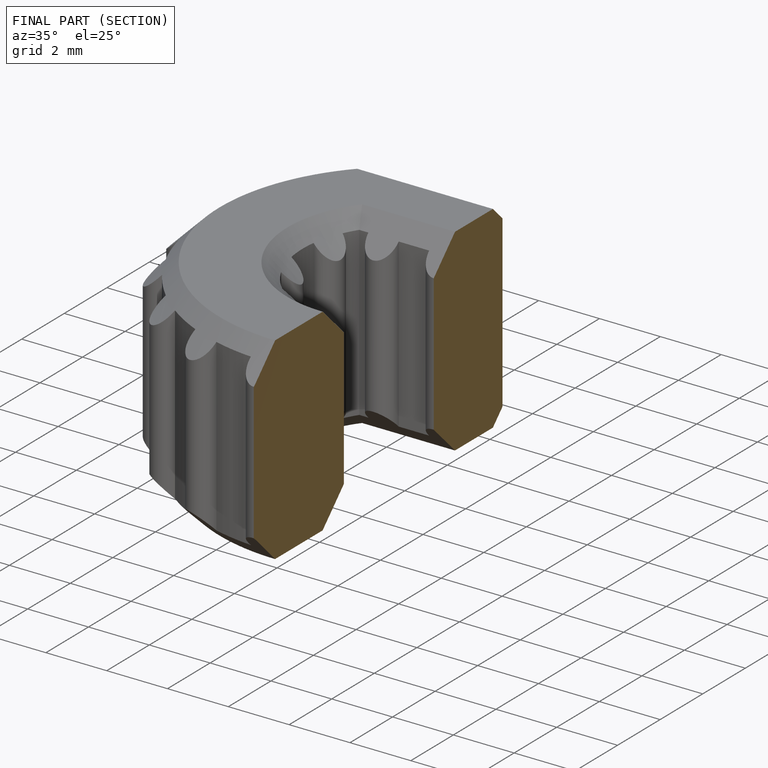
[diagram: finished part — half-section view (interior)]
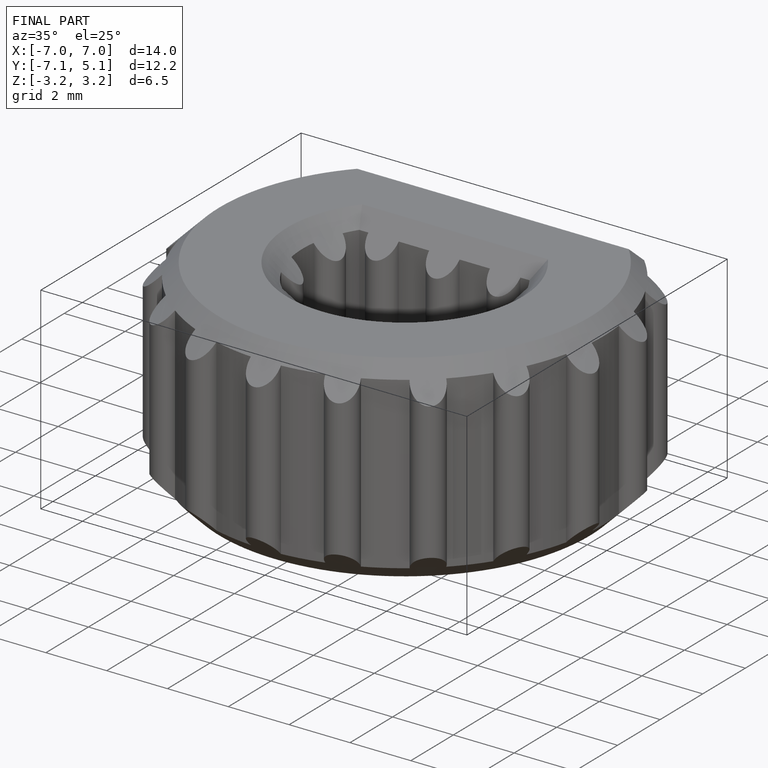
[diagram: finished part — iso view with bounding-box wireframe]
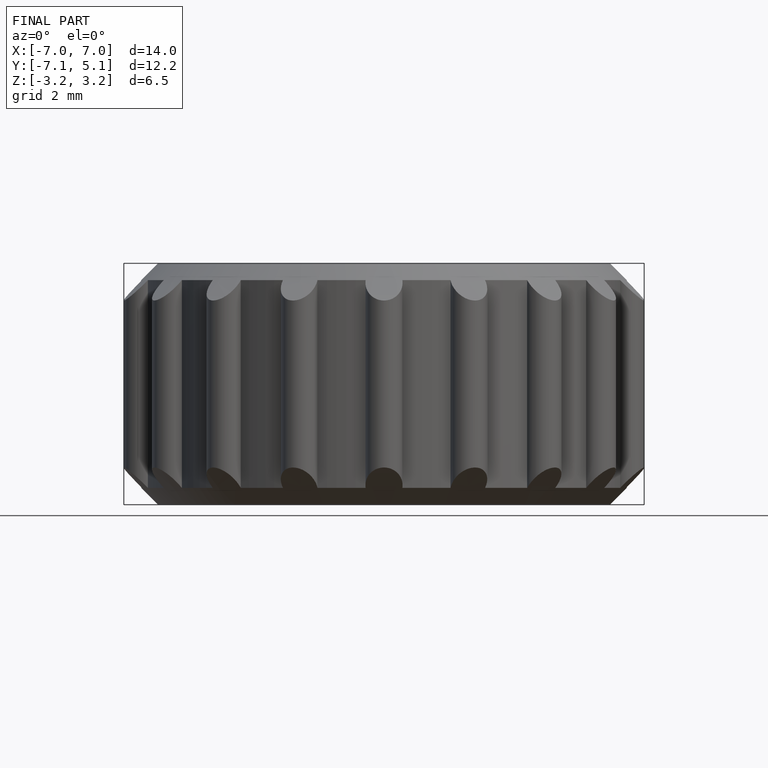
[diagram: finished part — front view with bounding-box wireframe]
